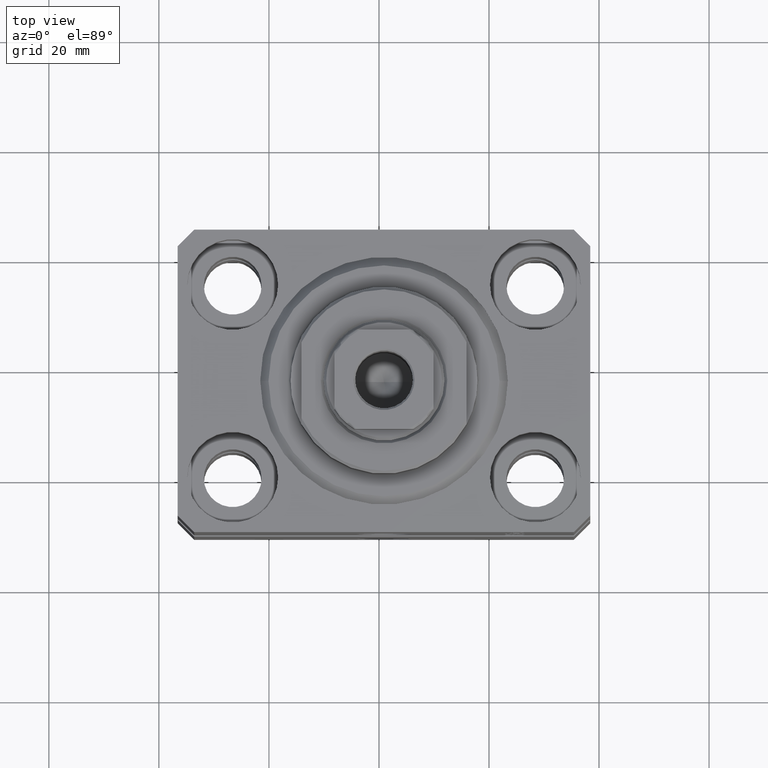
[diagram: clean part render]
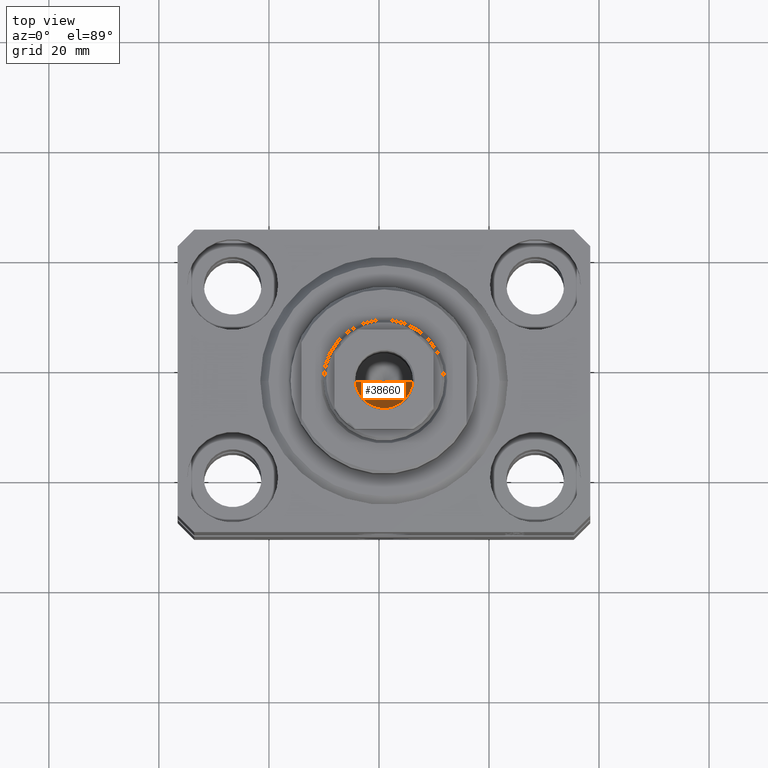
[diagram: same view with one face highlighted and labeled with its STEP entity id]
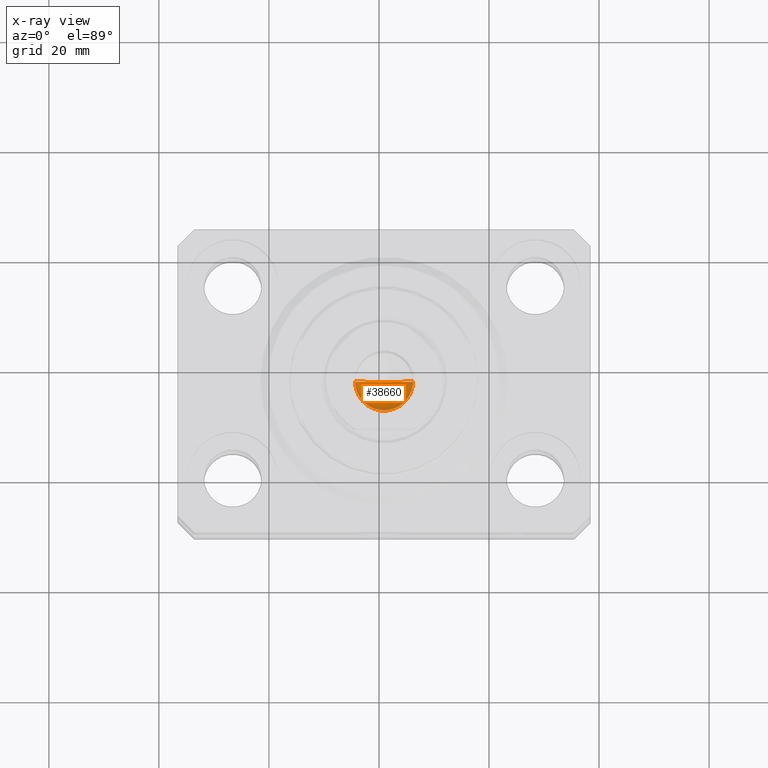
[diagram: x-ray of the same camera — body ghosted, the highlighted face saturated]
A machine part, top view. The second image highlights one B-rep face of the part: STEP entity #38660.
The next image is the same camera in x-ray: the body ghosted, the highlighted face saturated — about 11% of this face is hidden behind the body in this view.
In plain terms, the highlighted conical surface has half-angle 59 deg.
Its self-contained STEP definition (entity closure, byte-faithful):
#461 = EDGE_LOOP ( 'NONE', ( #31716, #14494, #33512 ) ) ;
#3631 = EDGE_CURVE ( 'NONE', #16986, #30317, #7387, .T. ) ;
#6088 = CONICAL_SURFACE ( 'NONE', #42816, 5.249999999999994671, 1.029744258676653645 ) ;
#6643 = CARTESIAN_POINT ( 'NONE',  ( -5.249999999999994671, 6.429395695523597250E-16, 60.10000000000000853 ) ) ;
#7387 = LINE ( 'NONE', #27691, #43546 ) ;
#12434 = CARTESIAN_POINT ( 'NONE',  ( 5.249999999999994671, 0.000000000000000000, 60.10000000000000853 ) ) ;
#14494 = ORIENTED_EDGE ( 'NONE', *, *, #33567, .T. ) ;
#15375 = AXIS2_PLACEMENT_3D ( 'NONE', #28598, #29272, #42367 ) ;
#16736 = VECTOR ( 'NONE', #37833, 1000.000000000000000 ) ;
#16986 = VERTEX_POINT ( 'NONE', #27765 ) ;
#17532 = VERTEX_POINT ( 'NONE', #6643 ) ;
#27691 = CARTESIAN_POINT ( 'NONE',  ( 5.249999999999994671, 0.000000000000000000, 60.10000000000000853 ) ) ;
#27765 = CARTESIAN_POINT ( 'NONE',  ( -6.783656367213677939E-15, 0.000000000000000000, 56.94548175010531565 ) ) ;
#28273 = DIRECTION ( 'NONE',  ( -0.000000000000000000, -0.000000000000000000, 1.000000000000000000 ) ) ;
#28598 = CARTESIAN_POINT ( 'NONE',  ( 0.000000000000000000, 0.000000000000000000, 60.10000000000000853 ) ) ;
#29272 = DIRECTION ( 'NONE',  ( -0.000000000000000000, -0.000000000000000000, 1.000000000000000000 ) ) ;
#30317 = VERTEX_POINT ( 'NONE', #12434 ) ;
#31272 = LINE ( 'NONE', #38496, #16736 ) ;
#31716 = ORIENTED_EDGE ( 'NONE', *, *, #3631, .F. ) ;
#31952 = CIRCLE ( 'NONE', #15375, 5.249999999999994671 ) ;
#33512 = ORIENTED_EDGE ( 'NONE', *, *, #37508, .T. ) ;
#33567 = EDGE_CURVE ( 'NONE', #16986, #17532, #31272, .T. ) ;
#35050 = FACE_OUTER_BOUND ( 'NONE', #461, .T. ) ;
#37508 = EDGE_CURVE ( 'NONE', #17532, #30317, #31952, .T. ) ;
#37833 = DIRECTION ( 'NONE',  ( -0.8571673007021118895, 1.049727191138618079E-16, 0.5150380749100549327 ) ) ;
#38496 = CARTESIAN_POINT ( 'NONE',  ( -5.249999999999994671, 6.429395695523597250E-16, 60.10000000000000853 ) ) ;
#38660 = ADVANCED_FACE ( 'NONE', ( #35050 ), #6088, .F. ) ;
#39116 = CARTESIAN_POINT ( 'NONE',  ( 0.000000000000000000, 0.000000000000000000, 60.10000000000000853 ) ) ;
#41901 = DIRECTION ( 'NONE',  ( 0.8571673007021118895, 0.000000000000000000, 0.5150380749100549327 ) ) ;
#42367 = DIRECTION ( 'NONE',  ( 1.000000000000000000, 0.000000000000000000, 0.000000000000000000 ) ) ;
#42494 = DIRECTION ( 'NONE',  ( 1.000000000000000000, 0.000000000000000000, 0.000000000000000000 ) ) ;
#42816 = AXIS2_PLACEMENT_3D ( 'NONE', #39116, #28273, #42494 ) ;
#43546 = VECTOR ( 'NONE', #41901, 1000.000000000000000 ) ;